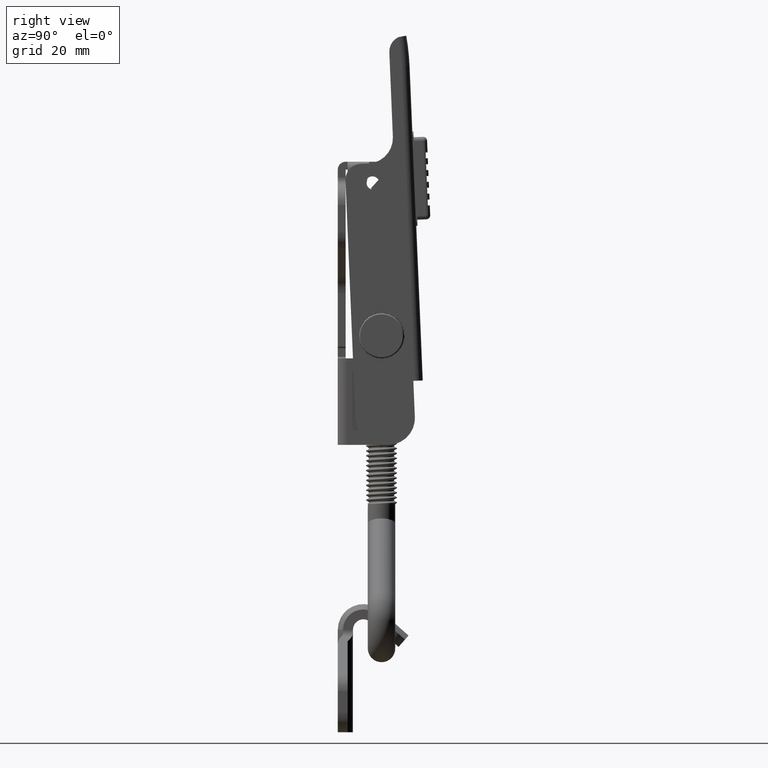
[diagram: clean part render]
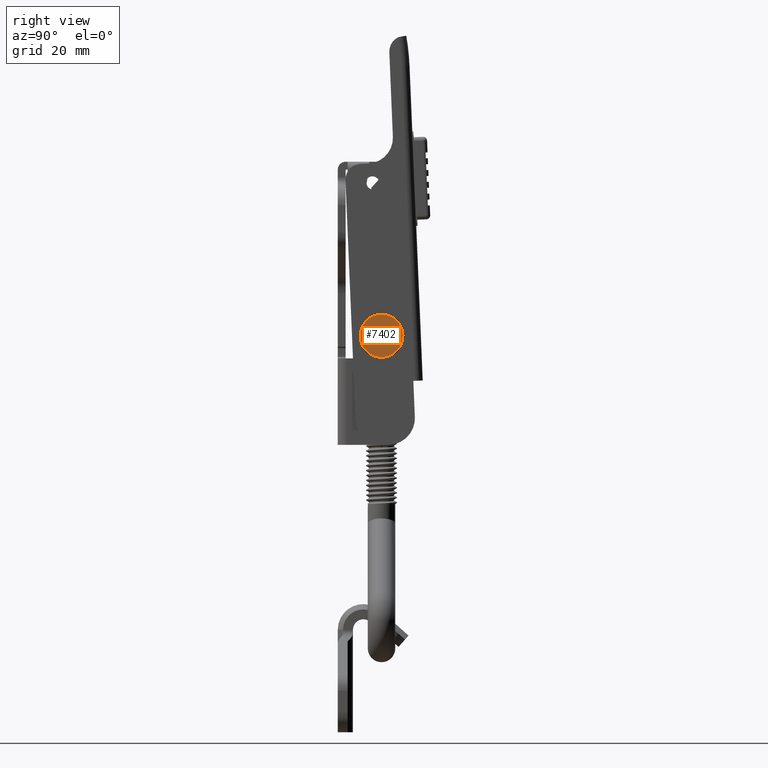
[diagram: same view with one face highlighted and labeled with its STEP entity id]
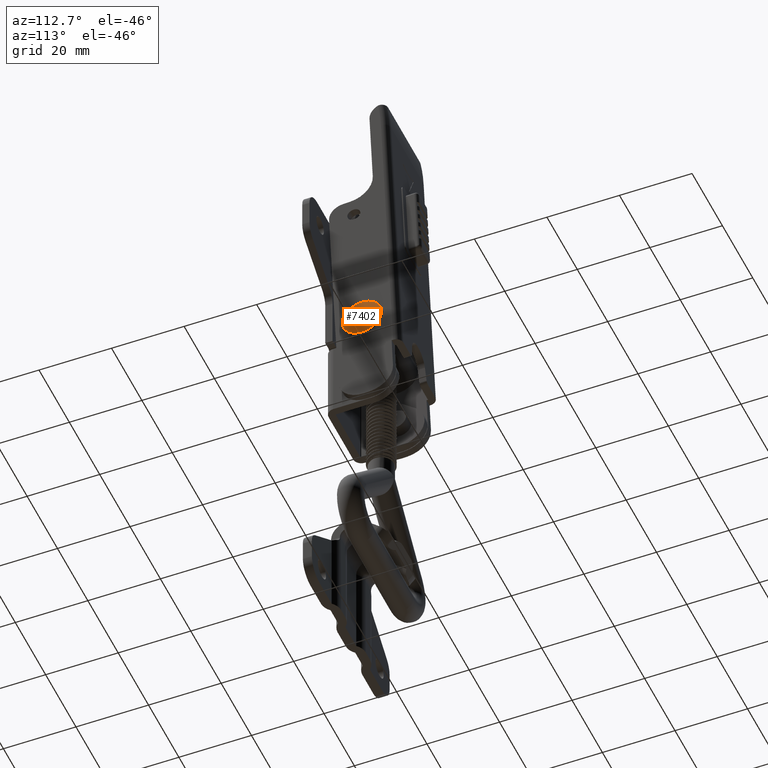
[diagram: same view with one face highlighted and labeled with its STEP entity id]
A machine part, right view. The second image highlights one B-rep face of the part: STEP entity #7402.
A second angle (auxiliary view) of the same face is appended — the face is thin or edge-on in the first view.
In plain terms, the highlighted planar face has unit normal (-1, 0, -0).
Its self-contained STEP definition (entity closure, byte-faithful):
#586=PLANE('',#8054);
#2068=FACE_OUTER_BOUND('',#2507,.T.);
#2507=EDGE_LOOP('',(#6630));
#2847=CIRCLE('',#8050,5.45);
#3582=VERTEX_POINT('',#35272);
#4614=EDGE_CURVE('',#3582,#3582,#2847,.T.);
#6630=ORIENTED_EDGE('',*,*,#4614,.T.);
#7402=ADVANCED_FACE('',(#2068),#586,.F.);
#8050=AXIS2_PLACEMENT_3D('',#35273,#9786,#9787);
#8054=AXIS2_PLACEMENT_3D('',#35279,#9794,#9795);
#9786=DIRECTION('center_axis',(1.37055060008095E-16,8.28505166214329E-16,
-1.));
#9787=DIRECTION('ref_axis',(-1.94877060241326E-6,-0.999999999998101,-8.28505433301628E-16));
#9794=DIRECTION('center_axis',(-1.37055060008095E-16,-8.28505166214329E-16,
1.));
#9795=DIRECTION('ref_axis',(-1.94877060266663E-6,-0.999999999998101,0.));
#35272=CARTESIAN_POINT('',(20.9477655809925,3.76727538564409,-12.75));
#35273=CARTESIAN_POINT('Origin',(20.9477549601926,-1.68272461434555,-12.75));
#35279=CARTESIAN_POINT('Origin',(20.9477549601926,-1.68272461434555,-12.75));